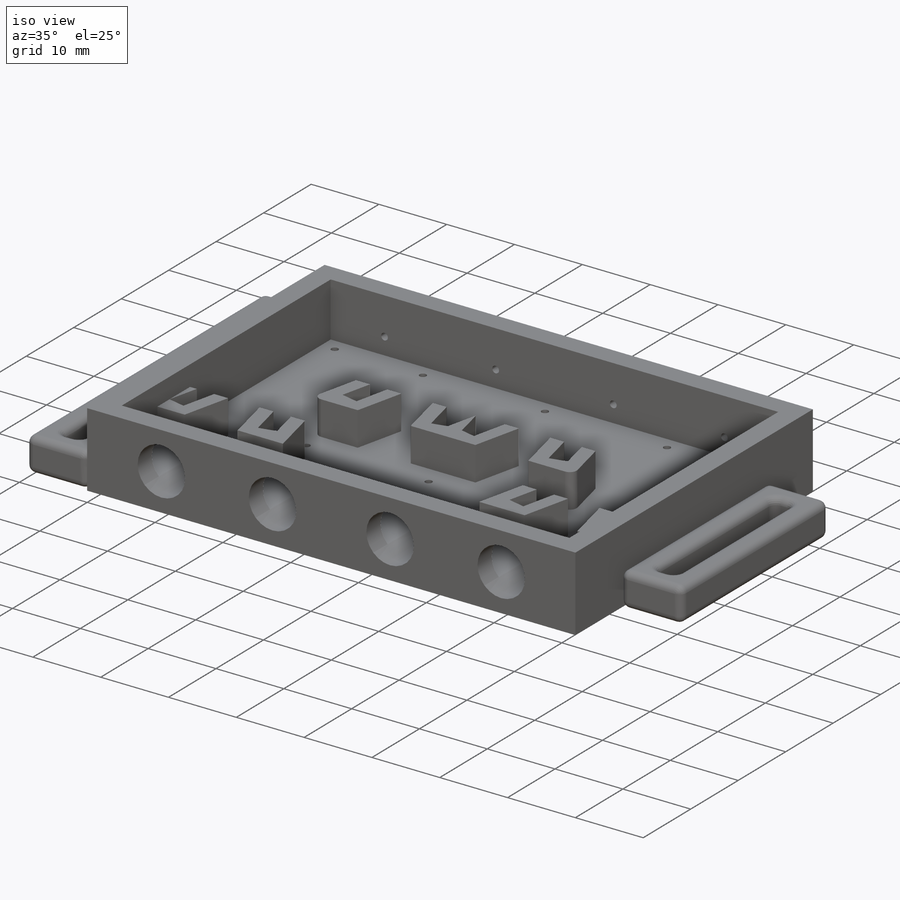
[diagram: iso view]
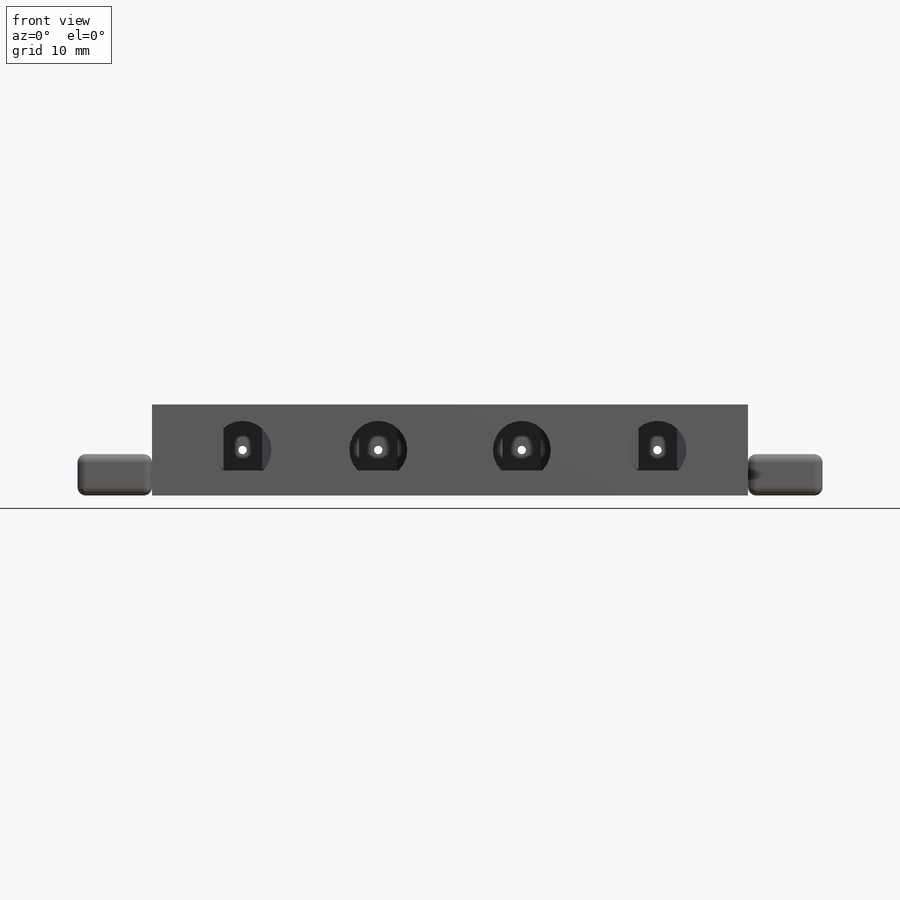
[diagram: front view]
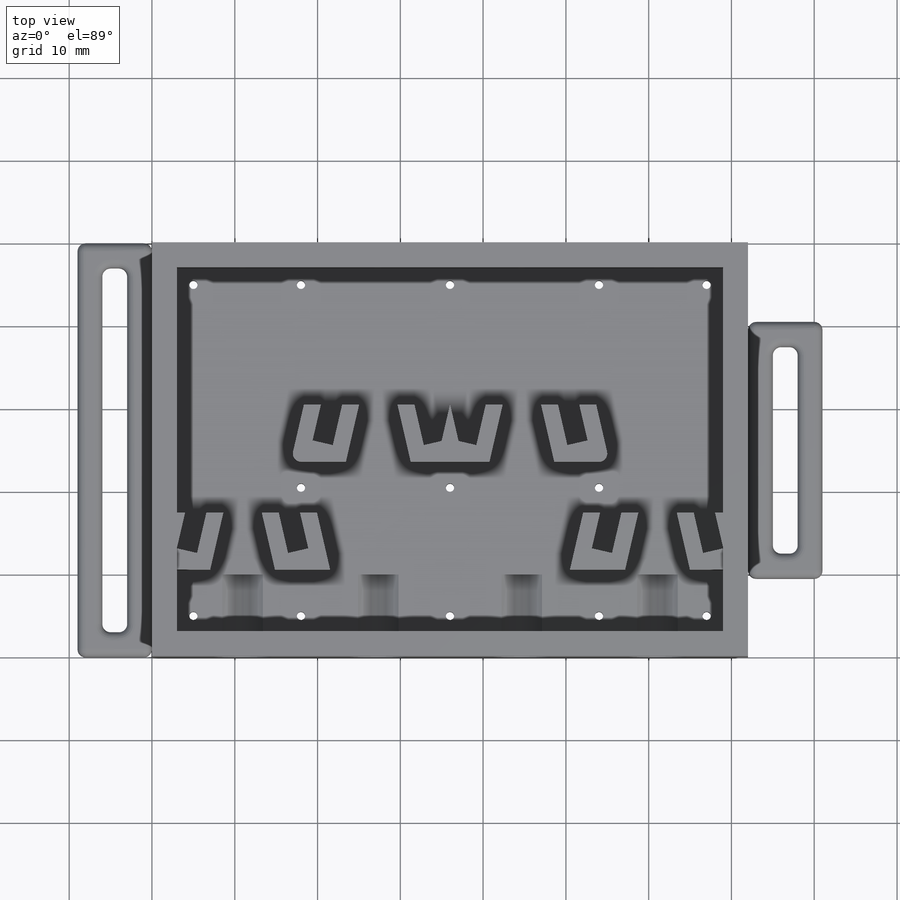
[diagram: top view]
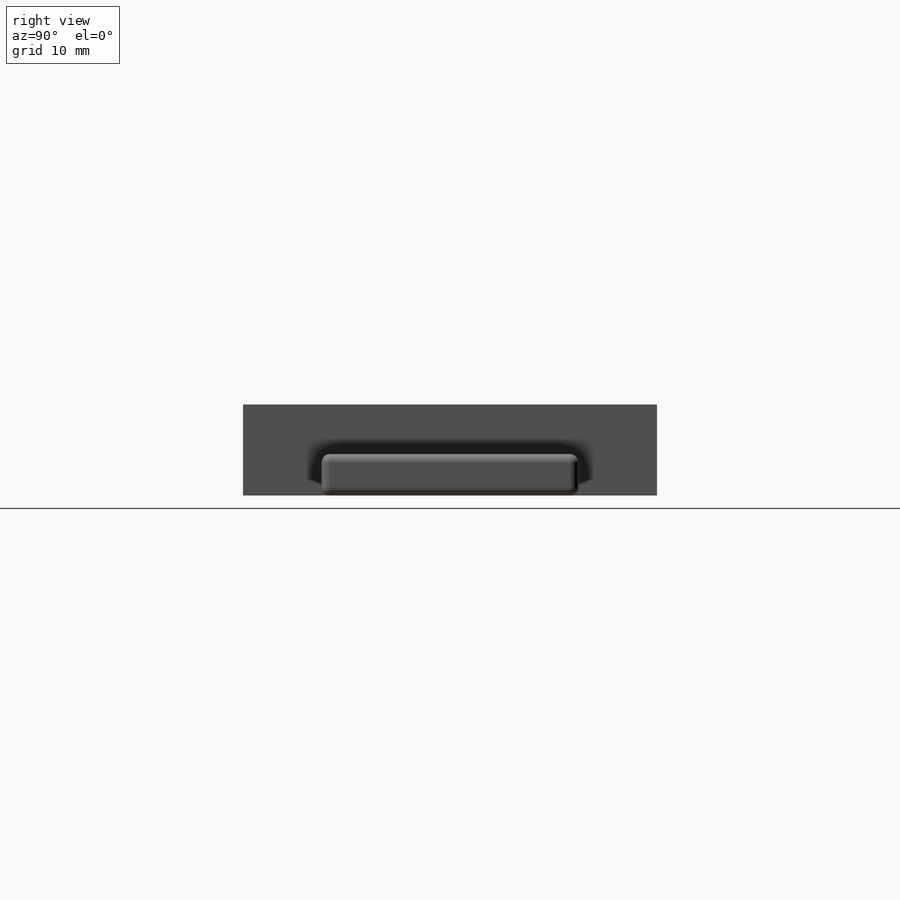
[diagram: right view]
SOLIDWORKS PART (.sldprt)
format: sldprt  version: not decoded by parser v0  size: 771,584 bytes
history: native  units: mm
features: sketch x8, cut_extrude x5, extrude x3, fillet x3, material x1 (+13 scaffold rows collapsed)
feature tree (33):
  scaffold x13  (default folders/planes/origin — collapsed)
  material  "Material <not specified>"
  sketch  "Sketch1"  dims[D1=72.0mm]
  extrude  "Boss-Extrude2"  Depth=11mm
  sketch  "Sketch2"  dims[c1.D1=3.0mm c1.D2=3.0mm c1.D3=3.0mm c1.D4=3.0mm c2.D2=3.0mm]
  cut_extrude  "Cut-Extrude1"  Depth=8mm
  sketch  "Sketch3"  dims[c1.D1=~10.998042mm c1.D2=~8.292937mm c2.D2=77.0deg c2.D3=2.5mm c2.D4=2.0mm c2.D5=2.0mm c2.D6=2.5mm c2.D7=2.0mm c2.D8=2.0mm c2.D9=5.0mm c2.D10=5.0mm c2.D11=~6.347277mm c3.D11=77.0deg c3.D12=2.0mm c3.D13=2.0mm c3.D14=2.5mm c3.D15=2.0mm c3.D16=2.0mm c3.D17=~10.998042mm c3.D18=~6.87185mm c4.D18=77.0deg c4.D19=~6.157825mm c5.D19=77.0deg c5.D20=5.0mm c5.D21=5.0mm c5.D22=2.0mm c5.D23=2.2mm c5.D24=2.0mm c5.D25=~10.998042mm c5.D26=2.0mm c5.D27=2.0mm c5.D28=2.2mm c5.D29=~7.052608mm c6.D29=77.0deg c6.D30=5.0mm c6.D31=5.0mm c6.D32=~7.052608mm c7.D32=77.0deg c7.D33=2.0mm c7.D34=2.0mm c7.D35=2.5mm c7.D36=~7.052608mm c8.D36=77.0deg c8.D37=2.0mm c8.D38=2.0mm c8.D39=2.5mm c8.D40=2.5mm c8.D41=2.0mm c8.D42=2.0mm c8.D43=~10.998042mm c8.D44=~6.157825mm c9.D44=77.0deg c9.D45=5.0mm c9.D46=5.0mm c9.D47=2.0mm c9.D48=2.0mm c9.D49=7.5mm c9.D50=7.5mm c9.D51=3.49mm c9.D52=~3.494788mm c9.D53=~6.831923mm c9.D54=~23.31763mm c9.D55=2.0mm c9.D56=~10.998042mm c9.D17=11.0mm c9.D25=11.0mm c9.D43=11.0mm c9.D57=20.0mm c9.D58=20.0mm c9.D59=20.0mm c9.D60=20.0mm c9.D61=20.0mm c10.D56=20.0mm c10.D62=~10.998042mm c10.D53=~5.435925mm c10.D54=~21.831497mm]
  extrude  "Boss-Extrude3"  Depth=5mm
  sketch  "Sketch4"  dims[c1.D1=~2.930619mm c1.D2=7.0mm c1.D3=7.0mm c1.D4=7.0mm c1.D5=7.0mm c1.D6=7.0mm c1.D8=7.0mm c2.D1=2.5mm c2.D2=5.5mm c2.D3=5.5mm c2.D4=5.5mm c2.D5=10.94mm c2.D6=10.94mm c2.D7=27.33mm c2.D8=27.33mm]
  cut_extrude  "Cut-Extrude3"  Depth=10mm
  sketch  "Sketch10"  dims[c1.D1=~2.930619mm c1.D2=7.0mm c1.D3=7.0mm c1.D4=7.0mm c1.D5=7.0mm c1.D6=7.0mm c1.D8=7.0mm c2.D1=2.5mm c2.D2=5.5mm c2.D3=5.5mm c2.D4=5.5mm c2.D5=10.94mm c2.D6=10.94mm c2.D7=27.33mm c2.D8=27.33mm]
  cut_extrude  "Cut-Extrude9"  Depth=1.5mm
  sketch  "Sketch6"  dims[D1=~0.612693mm]
  cut_extrude  "Cut-Extrude5"  Depth=1.5mm
  sketch  "Sketch8"  dims[D1=3.0mm D2=3.0mm D3=3.0mm D4=3.0mm D5=25.0mm D6=3.0mm D7=3.0mm D8=3.0mm D9=3.0mm D10=3.0mm D11=9.5mm D12=9.5mm D13=3.0mm]
  extrude  "Boss-Extrude4"  Depth=5mm
  fillet  "Fillet1"  Radius=1mm
  fillet  "Fillet2"  Radius=1mm
  fillet  "Fillet3"  Radius=1mm
  sketch  "Sketch11"  dims[c1.D1=1.0mm c1.D3=1.0mm c1.D4=1.0mm c1.D5=1.0mm c1.D6=1.0mm c1.D8=1.0mm c1.D9=1.0mm c1.D10=1.0mm c1.D15=1.0mm c1.D16=1.0mm c1.D17=1.0mm c1.D19=1.0mm c1.D21=1.0mm c1.D22=~1.287813mm c1.D25=1.0mm c1.D26=1.0mm c1.D27=1.0mm c2.D1=2.0mm c2.D2=2.0mm c2.D3=2.0mm c2.D4=15.0mm c2.D5=33.0mm c2.D6=33.0mm c2.D7=15.0mm c2.D8=2.0mm c2.D9=2.0mm c2.D10=2.0mm c2.D11=2.0mm c2.D12=15.0mm c2.D13=33.0mm c2.D14=2.0mm c2.D15=2.0mm c2.D16=2.0mm c2.D17=2.0mm c2.D18=2.0mm c2.D19=15.0mm c2.D20=2.0mm c2.D21=2.0mm c2.D22=15.0mm c2.D23=15.0mm c2.D24=33.0mm c2.D25=17.5mm c2.D26=17.5mm c2.D27=17.5mm]
  cut_extrude  "Cut-Extrude10"  Depth=3mm
decode coverage: 19 of 19 modeling features carry decoded parameters
note: ~ marks probable driven/reference dimensions
note: suppression state not decoded; provenance and decode notes live in map.json
